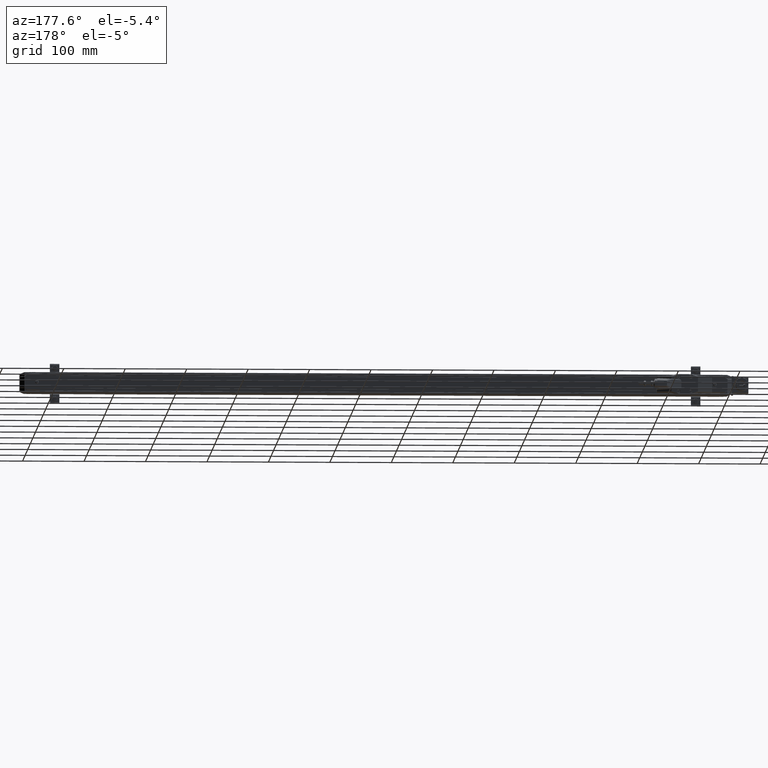
[diagram: clean part render]
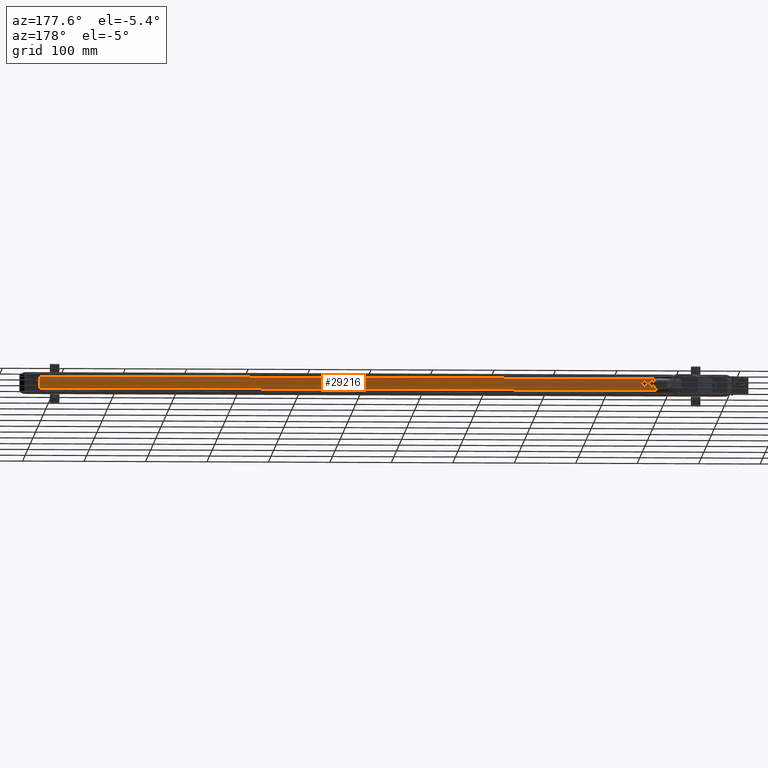
[diagram: same view with one face highlighted and labeled with its STEP entity id]
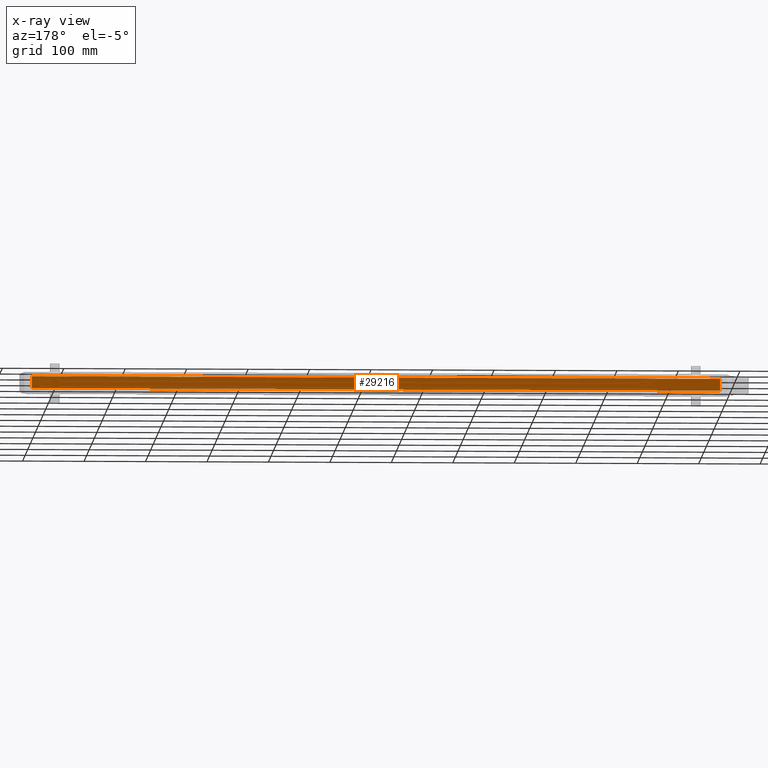
[diagram: x-ray of the same camera — body ghosted, the highlighted face saturated]
A machine part, auxiliary view. The second image highlights one B-rep face of the part: STEP entity #29216.
The next image is the same camera in x-ray: the body ghosted, the highlighted face saturated — about 0% of this face is hidden behind the body in this view.
In plain terms, the highlighted planar face has unit normal (-0, -1, -0).
Its self-contained STEP definition (entity closure, byte-faithful):
#486 = DIRECTION ( 'NONE',  ( -1.341063538875100359E-28, 9.072071993112326408E-17, -1.000000000000000000 ) ) ;
#773 = VERTEX_POINT ( 'NONE', #34005 ) ;
#3491 = CARTESIAN_POINT ( 'NONE',  ( 32.28346456692914046, 1.244094468976377987, -0.2731299497244098484 ) ) ;
#3637 = CARTESIAN_POINT ( 'NONE',  ( -11.81102362204724621, 1.244094468976377987, -0.2731299497244098484 ) ) ;
#4172 = VECTOR ( 'NONE', #17826, 39.37007874015748143 ) ;
#4255 = VERTEX_POINT ( 'NONE', #30300 ) ;
#5489 = DIRECTION ( 'NONE',  ( -1.341063538875100359E-28, 9.072071993112326408E-17, -1.000000000000000000 ) ) ;
#8139 = LINE ( 'NONE', #8843, #29463 ) ;
#8843 = CARTESIAN_POINT ( 'NONE',  ( -11.81102362204724621, 1.244094468976377987, -0.2731299497244098484 ) ) ;
#8902 = CARTESIAN_POINT ( 'NONE',  ( 32.28346456692806754, 1.244094468976377987, -0.7971094530577013115 ) ) ;
#9189 = LINE ( 'NONE', #23385, #13793 ) ;
#9255 = DIRECTION ( 'NONE',  ( -1.341063538875100359E-28, 9.072071993112326408E-17, -1.000000000000000000 ) ) ;
#9447 = ORIENTED_EDGE ( 'NONE', *, *, #24723, .F. ) ;
#10309 = EDGE_LOOP ( 'NONE', ( #32094, #34040, #41586, #40850, #39734, #9447, #22814, #42663 ) ) ;
#11363 = EDGE_CURVE ( 'NONE', #45719, #13943, #17264, .T. ) ;
#12063 = VERTEX_POINT ( 'NONE', #42751 ) ;
#13424 = LINE ( 'NONE', #28293, #4172 ) ;
#13793 = VECTOR ( 'NONE', #5489, 39.37007874015748143 ) ;
#13943 = VERTEX_POINT ( 'NONE', #35438 ) ;
#14328 = PLANE ( 'NONE',  #25618 ) ;
#14583 = DIRECTION ( 'NONE',  ( -6.829894528618835672E-25, -1.000000000000000000, -9.072071993112328873E-17 ) ) ;
#16867 = EDGE_CURVE ( 'NONE', #21109, #12063, #13424, .T. ) ;
#17264 = LINE ( 'NONE', #27737, #38934 ) ;
#17826 = DIRECTION ( 'NONE',  ( 1.000000000000000000, -6.829894528618835672E-25, -1.341063538875720069E-28 ) ) ;
#19090 = VERTEX_POINT ( 'NONE', #32780 ) ;
#20394 = EDGE_CURVE ( 'NONE', #19090, #45719, #8139, .T. ) ;
#21109 = VERTEX_POINT ( 'NONE', #3637 ) ;
#22814 = ORIENTED_EDGE ( 'NONE', *, *, #37465, .F. ) ;
#23385 = CARTESIAN_POINT ( 'NONE',  ( -11.81102362204724621, 1.244094468976377987, -0.2731299497244098484 ) ) ;
#24440 = CARTESIAN_POINT ( 'NONE',  ( 32.28346456692914046, 1.244094468976377987, -0.2731299497244098484 ) ) ;
#24723 = EDGE_CURVE ( 'NONE', #773, #19090, #33925, .T. ) ;
#25110 = DIRECTION ( 'NONE',  ( -1.341063538875100359E-28, 9.072071993112326408E-17, -1.000000000000000000 ) ) ;
#25518 = VECTOR ( 'NONE', #486, 39.37007874015748143 ) ;
#25618 = AXIS2_PLACEMENT_3D ( 'NONE', #28523, #14583, #42724 ) ;
#25665 = LINE ( 'NONE', #44263, #30799 ) ;
#26726 = EDGE_CURVE ( 'NONE', #12063, #4255, #32079, .T. ) ;
#26924 = CARTESIAN_POINT ( 'NONE',  ( -11.81102362204724621, 1.244094468976377987, -0.2731299497244098484 ) ) ;
#27737 = CARTESIAN_POINT ( 'NONE',  ( -11.81102362204724621, 1.244094468976377987, -1.025948047716535694 ) ) ;
#28293 = CARTESIAN_POINT ( 'NONE',  ( -11.81102362204724621, 1.244094468976377987, -0.2731299497244098484 ) ) ;
#28523 = CARTESIAN_POINT ( 'NONE',  ( -11.81102362204724621, 1.244094468976377987, -0.2731299497244098484 ) ) ;
#29216 = ADVANCED_FACE ( 'NONE', ( #31996 ), #14328, .F. ) ;
#29315 = DIRECTION ( 'NONE',  ( -1.341063538875100359E-28, 9.072071993112326408E-17, -1.000000000000000000 ) ) ;
#29463 = VECTOR ( 'NONE', #29315, 39.37007874015748143 ) ;
#30300 = CARTESIAN_POINT ( 'NONE',  ( 32.28346456692806754, 1.244094468976377987, -0.5019685431847786816 ) ) ;
#30799 = VECTOR ( 'NONE', #40081, 39.37007874015748143 ) ;
#31996 = FACE_OUTER_BOUND ( 'NONE', #10309, .T. ) ;
#32079 = LINE ( 'NONE', #24440, #25518 ) ;
#32094 = ORIENTED_EDGE ( 'NONE', *, *, #26726, .T. ) ;
#32281 = CARTESIAN_POINT ( 'NONE',  ( -11.81102362204724621, 1.244094468976377987, -1.025948047716535694 ) ) ;
#32780 = CARTESIAN_POINT ( 'NONE',  ( -11.81102362204724621, 1.244094468976377987, -0.7974689980202988027 ) ) ;
#33925 = LINE ( 'NONE', #26924, #45605 ) ;
#34005 = CARTESIAN_POINT ( 'NONE',  ( -11.81102362204724621, 1.244094468976377987, -0.5023280881482120597 ) ) ;
#34040 = ORIENTED_EDGE ( 'NONE', *, *, #42430, .T. ) ;
#35438 = CARTESIAN_POINT ( 'NONE',  ( 32.28346456692806754, 1.244094468976377987, -1.025948047716535694 ) ) ;
#37465 = EDGE_CURVE ( 'NONE', #21109, #773, #9189, .T. ) ;
#38898 = DIRECTION ( 'NONE',  ( 1.000000000000000000, -6.829894528618835672E-25, -1.341063538875720069E-28 ) ) ;
#38934 = VECTOR ( 'NONE', #38898, 39.37007874015748143 ) ;
#39293 = LINE ( 'NONE', #3491, #45007 ) ;
#39734 = ORIENTED_EDGE ( 'NONE', *, *, #20394, .F. ) ;
#40081 = DIRECTION ( 'NONE',  ( -1.341063538875100359E-28, 9.072071993112326408E-17, -1.000000000000000000 ) ) ;
#40331 = VERTEX_POINT ( 'NONE', #8902 ) ;
#40850 = ORIENTED_EDGE ( 'NONE', *, *, #11363, .F. ) ;
#41586 = ORIENTED_EDGE ( 'NONE', *, *, #45507, .T. ) ;
#42430 = EDGE_CURVE ( 'NONE', #4255, #40331, #25665, .T. ) ;
#42663 = ORIENTED_EDGE ( 'NONE', *, *, #16867, .T. ) ;
#42724 = DIRECTION ( 'NONE',  ( 1.341063538875100359E-28, -9.072071993112328873E-17, 1.000000000000000000 ) ) ;
#42751 = CARTESIAN_POINT ( 'NONE',  ( 32.28346456692807465, 1.244094468976377987, -0.2731299497244098484 ) ) ;
#44263 = CARTESIAN_POINT ( 'NONE',  ( 32.28346456692914046, 1.244094468976377987, -0.2731299497244098484 ) ) ;
#45007 = VECTOR ( 'NONE', #25110, 39.37007874015748143 ) ;
#45507 = EDGE_CURVE ( 'NONE', #40331, #13943, #39293, .T. ) ;
#45605 = VECTOR ( 'NONE', #9255, 39.37007874015748143 ) ;
#45719 = VERTEX_POINT ( 'NONE', #32281 ) ;